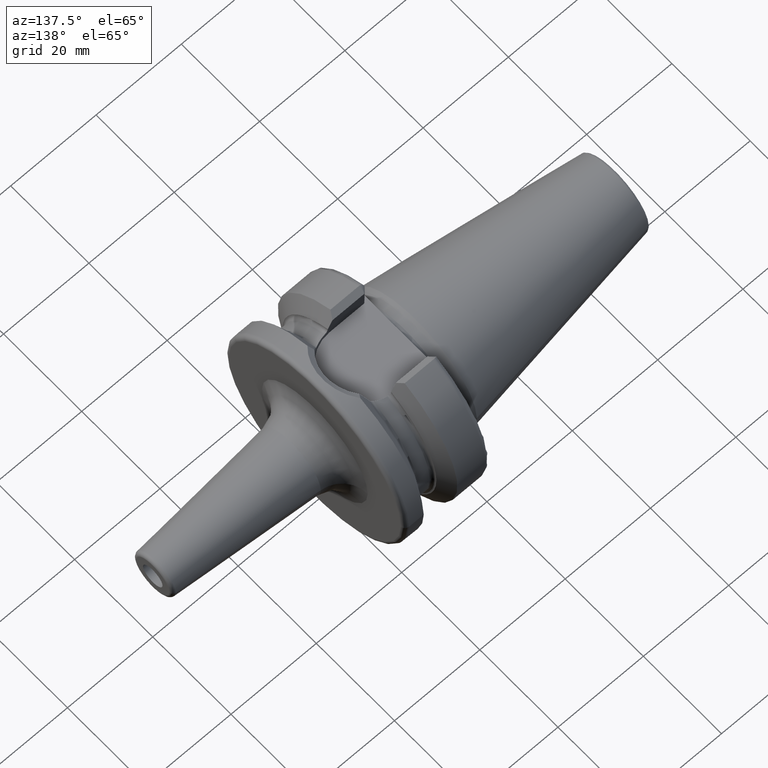
[diagram: clean part render]
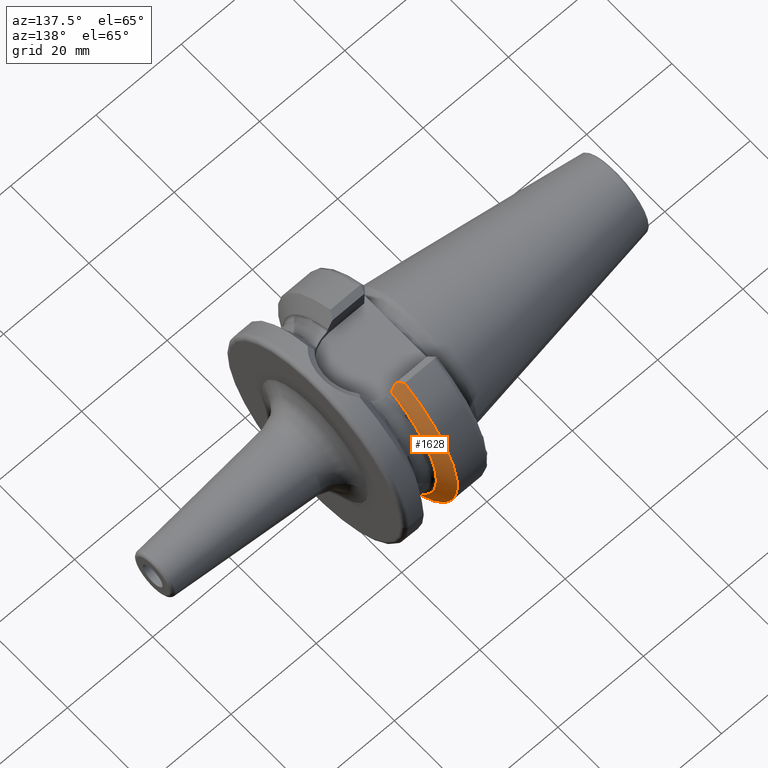
[diagram: same view with one face highlighted and labeled with its STEP entity id]
A machine part, auxiliary view. The second image highlights one B-rep face of the part: STEP entity #1628.
In plain terms, the highlighted conical surface has half-angle 60 deg.
Its self-contained STEP definition (entity closure, byte-faithful):
#151=CARTESIAN_POINT('',(1.017720370416E1,8.095E0,-2.054091629899E1));
#152=CARTESIAN_POINT('',(1.034592736338E1,8.095E0,-2.022680358126E1));
#153=CARTESIAN_POINT('',(1.067763645400E1,8.095E0,-1.960732394870E1));
#154=CARTESIAN_POINT('',(1.099781107595E1,8.095E0,-1.900530454573E1));
#155=CARTESIAN_POINT('',(1.1155E1,8.095E0,-1.870865212813E1));
#180=CARTESIAN_POINT('',(1.15625E1,0.E0,0.E0));
#181=DIRECTION('',(1.E0,0.E0,0.E0));
#182=DIRECTION('',(0.E0,4.108295537893E-1,-9.117121682490E-1));
#183=AXIS2_PLACEMENT_3D('',#180,#181,#182);
#217=CARTESIAN_POINT('',(9.650924158743E0,0.E0,0.E0));
#218=DIRECTION('',(1.E0,0.E0,0.E0));
#219=DIRECTION('',(0.E0,3.921232146517E-1,-9.199127048428E-1));
#220=AXIS2_PLACEMENT_3D('',#217,#218,#219);
#355=CARTESIAN_POINT('',(1.1155E1,8.095E0,-1.870865212813E1));
#356=CARTESIAN_POINT('',(1.122320683725E1,8.095E0,-1.857992980697E1));
#357=CARTESIAN_POINT('',(1.135933197530E1,8.093276167010E0,-1.832335661175E1));
#358=CARTESIAN_POINT('',(1.149487499855E1,8.088145321664E0,-1.806856911534E1));
#359=CARTESIAN_POINT('',(1.15625E1,8.084736776791E0,-1.794163255419E1));
#486=CARTESIAN_POINT('',(1.15625E1,8.084736776791E0,1.794163255419E1));
#487=CARTESIAN_POINT('',(1.149487499855E1,8.088145321664E0,1.806856911534E1));
#488=CARTESIAN_POINT('',(1.135933197530E1,8.093276167010E0,1.832335661175E1));
#489=CARTESIAN_POINT('',(1.122320683725E1,8.095E0,1.857992980697E1));
#490=CARTESIAN_POINT('',(1.1155E1,8.095E0,1.870865212813E1));
#628=CARTESIAN_POINT('',(1.017720370416E1,8.095E0,-2.054091629899E1));
#629=CARTESIAN_POINT('',(1.009208951352E1,8.245211924620E0,-2.064017608894E1));
#630=CARTESIAN_POINT('',(9.919262419200E0,8.548742773241E0,-2.084074876887E1));
#631=CARTESIAN_POINT('',(9.741236534800E0,8.858487080959E0,-2.104542729224E1));
#632=CARTESIAN_POINT('',(9.650924158743E0,9.014912704843E0,-2.114879308434E1));
#638=CARTESIAN_POINT('',(9.650924158743E0,9.508597089586E0,2.093147585308E1));
#639=CARTESIAN_POINT('',(9.791123521794E0,9.265764669593E0,2.077507399605E1));
#640=CARTESIAN_POINT('',(1.006550207100E1,8.787334100376E0,2.046692968203E1));
#641=CARTESIAN_POINT('',(1.032782868581E1,8.323367334132E0,2.016810111606E1));
#642=CARTESIAN_POINT('',(1.045597922678E1,8.095E0,2.002101583337E1));
#648=CARTESIAN_POINT('',(1.1155E1,8.095E0,1.870865212813E1));
#649=CARTESIAN_POINT('',(1.104157295667E1,8.095E0,1.892271559875E1));
#650=CARTESIAN_POINT('',(1.081163556423E1,8.095E0,1.935550271354E1));
#651=CARTESIAN_POINT('',(1.057555222538E1,8.095E0,1.979762107014E1));
#652=CARTESIAN_POINT('',(1.045597922678E1,8.095E0,2.002101583337E1));
#1186=CARTESIAN_POINT('',(1.15625E1,8.084736776791E0,-1.794163255419E1));
#1187=CARTESIAN_POINT('',(1.15625E1,8.084736776791E0,1.794163255419E1));
#1188=VERTEX_POINT('',#1186);
#1189=VERTEX_POINT('',#1187);
#1292=VERTEX_POINT('',#648);
#1293=VERTEX_POINT('',#652);
#1298=VERTEX_POINT('',#151);
#1299=VERTEX_POINT('',#155);
#1308=CARTESIAN_POINT('',(9.650924158743E0,9.014912704843E0,-2.114879308434E1));
#1309=CARTESIAN_POINT('',(9.650924158743E0,9.508597089586E0,2.093147585308E1));
#1310=VERTEX_POINT('',#1308);
#1311=VERTEX_POINT('',#1309);
#1606=CARTESIAN_POINT('',(1.060671207937E1,0.E0,0.E0));
#1607=DIRECTION('',(-1.E0,0.E0,0.E0));
#1608=DIRECTION('',(0.E0,1.E0,0.E0));
#1609=AXIS2_PLACEMENT_3D('',#1606,#1607,#1608);
#1610=CONICAL_SURFACE('',#1609,2.133452676021E1,6.E1);
#1612=ORIENTED_EDGE('',*,*,#1611,.F.);
#1614=ORIENTED_EDGE('',*,*,#1613,.F.);
#1615=ORIENTED_EDGE('',*,*,#1592,.T.);
#1617=ORIENTED_EDGE('',*,*,#1616,.T.);
#1619=ORIENTED_EDGE('',*,*,#1618,.T.);
#1621=ORIENTED_EDGE('',*,*,#1620,.T.);
#1623=ORIENTED_EDGE('',*,*,#1622,.T.);
#1625=ORIENTED_EDGE('',*,*,#1624,.F.);
#1626=EDGE_LOOP('',(#1612,#1614,#1615,#1617,#1619,#1621,#1623,#1625));
#1627=FACE_OUTER_BOUND('',#1626,.F.);
#1628=ADVANCED_FACE('',(#1627),#1610,.T.);
#156=B_SPLINE_CURVE_WITH_KNOTS('',3,(#151,#152,#153,#154,#155),.UNSPECIFIED.,
.F.,.F.,(4,1,4),(0.E0,5.E-1,1.E0),.UNSPECIFIED.);
#184=CIRCLE('',#183,1.967905352042E1);
#221=CIRCLE('',#220,2.299E1);
#360=B_SPLINE_CURVE_WITH_KNOTS('',3,(#355,#356,#357,#358,#359),.UNSPECIFIED.,
.F.,.F.,(4,1,4),(0.E0,5.E-1,1.E0),.UNSPECIFIED.);
#491=B_SPLINE_CURVE_WITH_KNOTS('',3,(#486,#487,#488,#489,#490),.UNSPECIFIED.,
.F.,.F.,(4,1,4),(0.E0,5.E-1,1.E0),.UNSPECIFIED.);
#633=B_SPLINE_CURVE_WITH_KNOTS('',3,(#628,#629,#630,#631,#632),.UNSPECIFIED.,
.F.,.F.,(4,1,4),(0.E0,5.E-1,1.E0),.UNSPECIFIED.);
#643=B_SPLINE_CURVE_WITH_KNOTS('',3,(#638,#639,#640,#641,#642),.UNSPECIFIED.,
.F.,.F.,(4,1,4),(0.E0,5.E-1,1.E0),.UNSPECIFIED.);
#653=B_SPLINE_CURVE_WITH_KNOTS('',3,(#648,#649,#650,#651,#652),.UNSPECIFIED.,
.F.,.F.,(4,1,4),(0.E0,5.E-1,1.E0),.UNSPECIFIED.);
#1592=EDGE_CURVE('',#1298,#1299,#156,.T.);
#1611=EDGE_CURVE('',#1310,#1311,#221,.T.);
#1613=EDGE_CURVE('',#1298,#1310,#633,.T.);
#1616=EDGE_CURVE('',#1299,#1188,#360,.T.);
#1618=EDGE_CURVE('',#1188,#1189,#184,.T.);
#1620=EDGE_CURVE('',#1189,#1292,#491,.T.);
#1622=EDGE_CURVE('',#1292,#1293,#653,.T.);
#1624=EDGE_CURVE('',#1311,#1293,#643,.T.);